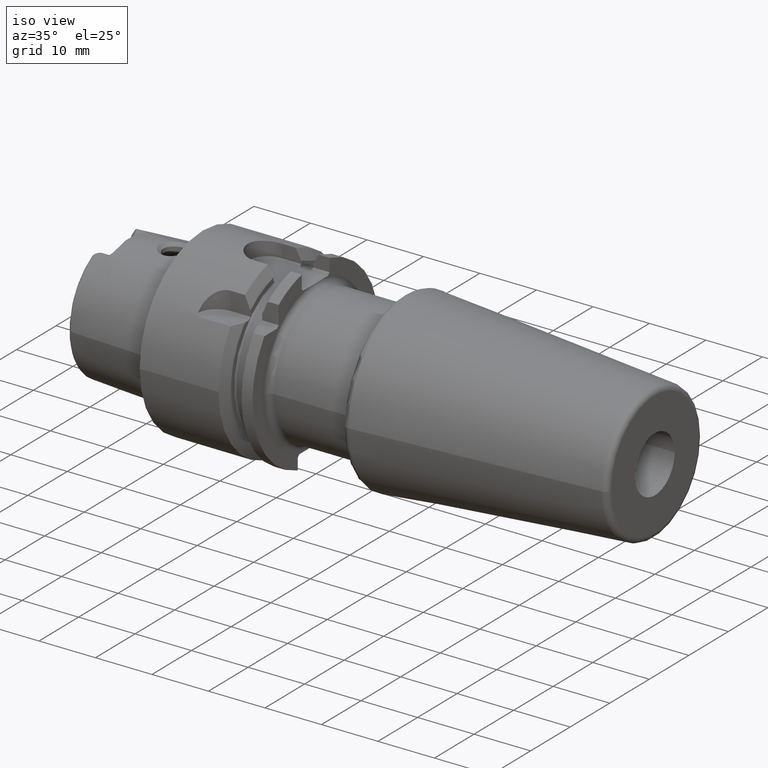
[diagram: clean part render]
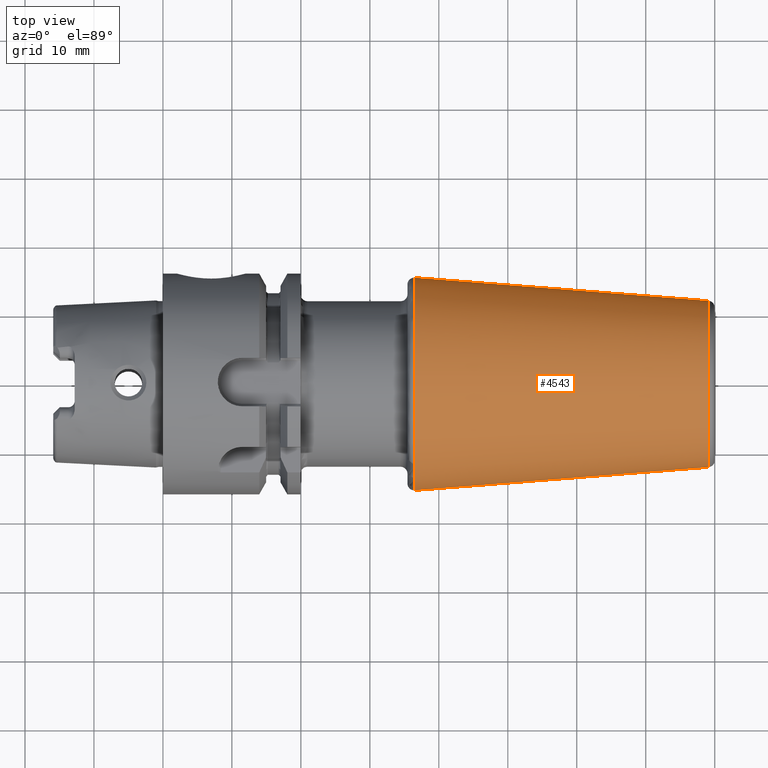
[diagram: tour spotlight — one face highlighted and labeled with its STEP entity id]
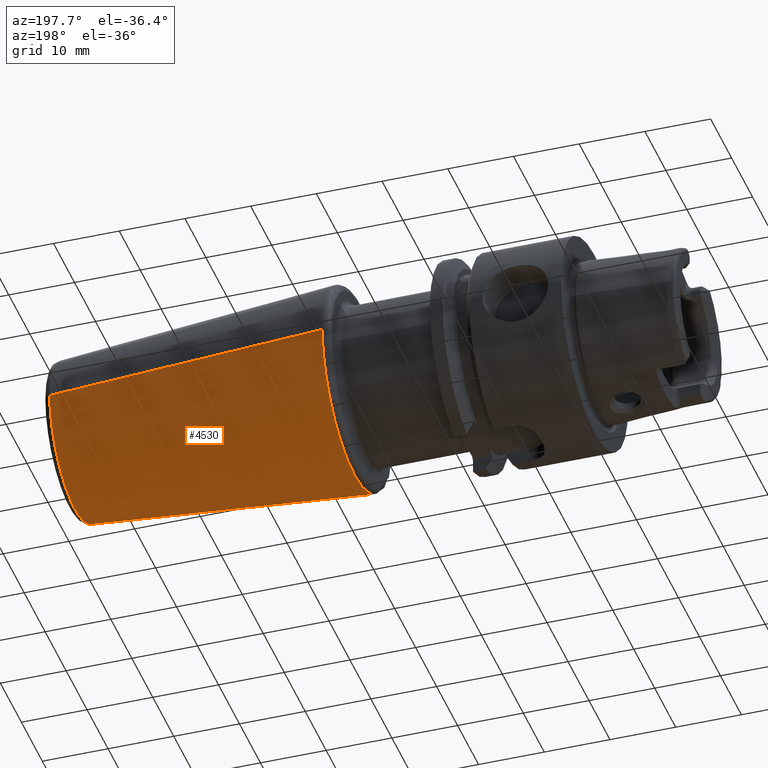
[diagram: tour spotlight — one face highlighted and labeled with its STEP entity id]
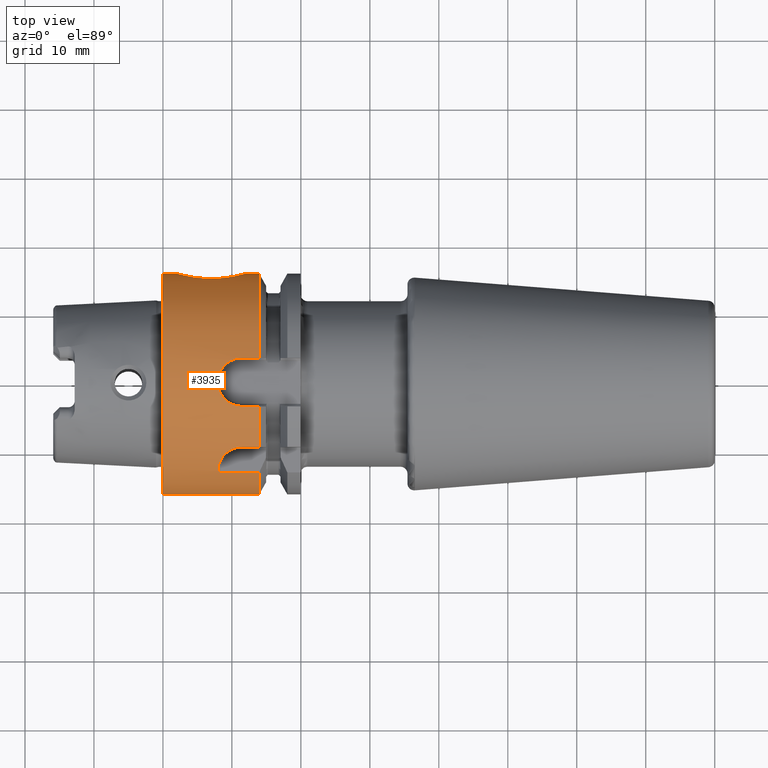
[diagram: tour spotlight — one face highlighted and labeled with its STEP entity id]
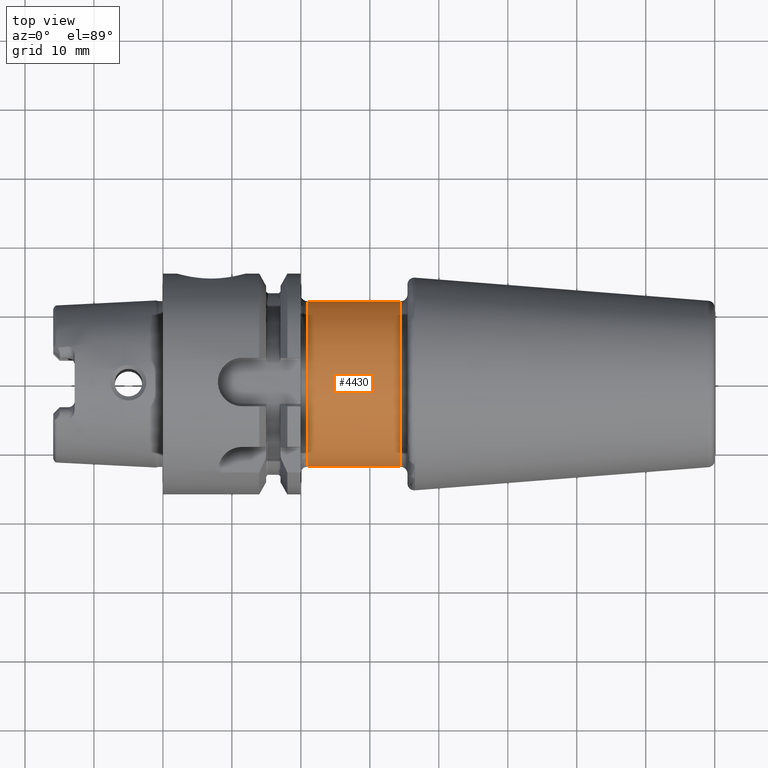
[diagram: tour spotlight — one face highlighted and labeled with its STEP entity id]
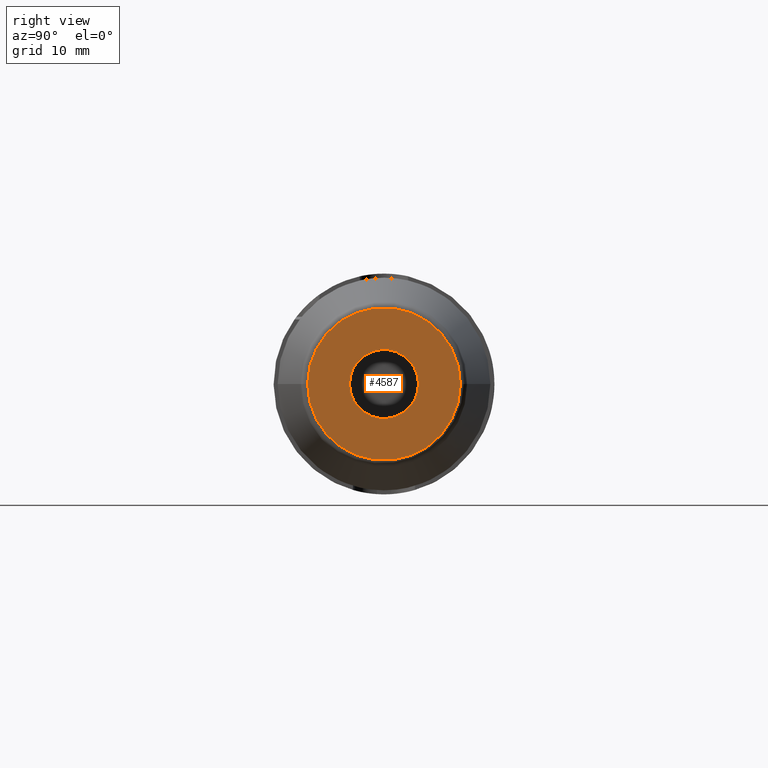
[diagram: tour spotlight — one face highlighted and labeled with its STEP entity id]
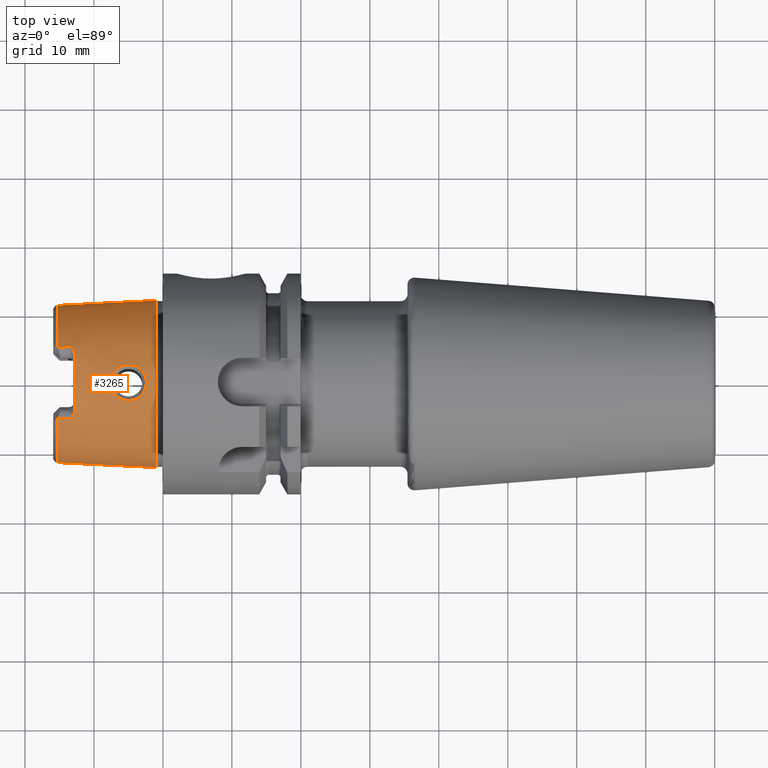
[diagram: tour spotlight — one face highlighted and labeled with its STEP entity id]
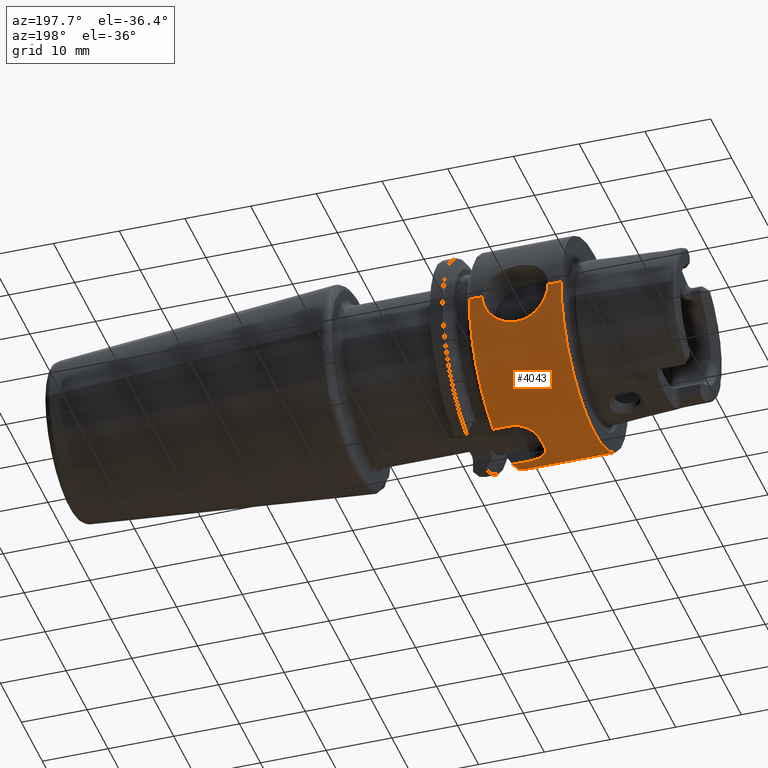
[diagram: tour spotlight — one face highlighted and labeled with its STEP entity id]
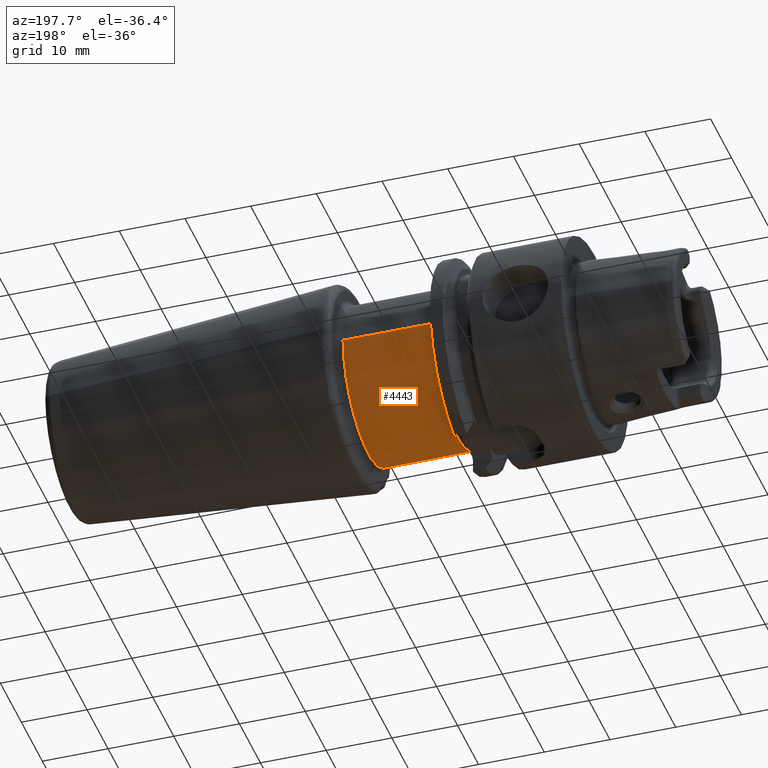
[diagram: tour spotlight — one face highlighted and labeled with its STEP entity id]
A machine part: a face-by-face anatomy tour. The part has 188 B-rep faces; the first image is the clean iso view, then the 8 largest visible faces are spotlighted one at a time (largest first), each with its STEP entity span.

Face 1 — top view, entity #4543. In plain terms, the highlighted conical surface has half-angle 4.5 deg.
Definition (entity closure, byte-faithful):
#1307=DIRECTION('',(-9.969173337331E-1,7.845909572785E-2,7.009415385202E-14));
#1308=VECTOR('',#1307,4.268157304544E1);
#1309=CARTESIAN_POINT('',(7.907845909573E1,1.207252684207E1,
-6.798136072397E-13));
#1310=LINE('',#1309,#1308);
#1316=DIRECTION('',(-9.969173337331E-1,-7.845909572785E-2,-7.015334956435E-14));
#1317=VECTOR('',#1316,4.268157304544E1);
#1318=CARTESIAN_POINT('',(7.907845909573E1,-1.207252684207E1,
6.821258751997E-13));
#1319=LINE('',#1318,#1317);
#1325=CARTESIAN_POINT('',(7.907845909573E1,0.E0,0.E0));
#1326=DIRECTION('',(-1.E0,0.E0,0.E0));
#1327=DIRECTION('',(0.E0,-1.E0,0.E0));
#1328=AXIS2_PLACEMENT_3D('',#1325,#1326,#1327);
#1330=CARTESIAN_POINT('',(3.652845909573E1,0.E0,0.E0));
#1331=DIRECTION('',(-1.E0,0.E0,0.E0));
#1332=DIRECTION('',(0.E0,-1.E0,0.E0));
#1333=AXIS2_PLACEMENT_3D('',#1330,#1331,#1332);
#3190=CARTESIAN_POINT('',(7.907845909573E1,1.207252684207E1,0.E0));
#3191=CARTESIAN_POINT('',(7.907845909573E1,-1.207252684207E1,0.E0));
#3192=VERTEX_POINT('',#3190);
#3193=VERTEX_POINT('',#3191);
#3216=CARTESIAN_POINT('',(3.652845909573E1,1.542128446746E1,
2.311915140454E-12));
#3217=VERTEX_POINT('',#3216);
#3218=CARTESIAN_POINT('',(3.652845909573E1,-1.542128446746E1,
-2.312129438614E-12));
#3219=VERTEX_POINT('',#3218);
#4531=CARTESIAN_POINT('',(5.780345909573E1,0.E0,0.E0));
#4532=DIRECTION('',(-1.E0,0.E0,0.E0));
#4533=DIRECTION('',(0.E0,1.E0,0.E0));
#4534=AXIS2_PLACEMENT_3D('',#4531,#4532,#4533);
#4535=CONICAL_SURFACE('',#4534,1.374690565477E1,4.5E0);
#4536=ORIENTED_EDGE('',*,*,#4521,.F.);
#4538=ORIENTED_EDGE('',*,*,#4537,.F.);
#4539=ORIENTED_EDGE('',*,*,#4524,.T.);
#4540=ORIENTED_EDGE('',*,*,#4496,.T.);
#4541=EDGE_LOOP('',(#4536,#4538,#4539,#4540));
#4542=FACE_OUTER_BOUND('',#4541,.F.);
#4543=ADVANCED_FACE('',(#4542),#4535,.T.);
#1329=CIRCLE('',#1328,1.207252684207E1);
#1334=CIRCLE('',#1333,1.542128446746E1);
#4496=EDGE_CURVE('',#3219,#3217,#1334,.T.);
#4521=EDGE_CURVE('',#3192,#3217,#1310,.T.);
#4524=EDGE_CURVE('',#3193,#3219,#1319,.T.);
#4537=EDGE_CURVE('',#3193,#3192,#1329,.T.);

Face 2 — auxiliary view, entity #4530. In plain terms, the highlighted conical surface has half-angle 4.5 deg.
Definition (entity closure, byte-faithful):
#1307=DIRECTION('',(-9.969173337331E-1,7.845909572785E-2,7.009415385202E-14));
#1308=VECTOR('',#1307,4.268157304544E1);
#1309=CARTESIAN_POINT('',(7.907845909573E1,1.207252684207E1,
-6.798136072397E-13));
#1310=LINE('',#1309,#1308);
#1311=CARTESIAN_POINT('',(3.652845909573E1,0.E0,0.E0));
#1312=DIRECTION('',(-1.E0,0.E0,0.E0));
#1313=DIRECTION('',(0.E0,1.E0,0.E0));
#1314=AXIS2_PLACEMENT_3D('',#1311,#1312,#1313);
#1316=DIRECTION('',(-9.969173337331E-1,-7.845909572785E-2,-7.015334956435E-14));
#1317=VECTOR('',#1316,4.268157304544E1);
#1318=CARTESIAN_POINT('',(7.907845909573E1,-1.207252684207E1,
6.821258751997E-13));
#1319=LINE('',#1318,#1317);
#1320=CARTESIAN_POINT('',(7.907845909573E1,0.E0,0.E0));
#1321=DIRECTION('',(-1.E0,0.E0,0.E0));
#1322=DIRECTION('',(0.E0,1.E0,0.E0));
#1323=AXIS2_PLACEMENT_3D('',#1320,#1321,#1322);
#3190=CARTESIAN_POINT('',(7.907845909573E1,1.207252684207E1,0.E0));
#3191=CARTESIAN_POINT('',(7.907845909573E1,-1.207252684207E1,0.E0));
#3192=VERTEX_POINT('',#3190);
#3193=VERTEX_POINT('',#3191);
#3216=CARTESIAN_POINT('',(3.652845909573E1,1.542128446746E1,
2.311915140454E-12));
#3217=VERTEX_POINT('',#3216);
#3218=CARTESIAN_POINT('',(3.652845909573E1,-1.542128446746E1,
-2.312129438614E-12));
#3219=VERTEX_POINT('',#3218);
#4516=CARTESIAN_POINT('',(5.780345909573E1,0.E0,0.E0));
#4517=DIRECTION('',(-1.E0,0.E0,0.E0));
#4518=DIRECTION('',(0.E0,1.E0,0.E0));
#4519=AXIS2_PLACEMENT_3D('',#4516,#4517,#4518);
#4520=CONICAL_SURFACE('',#4519,1.374690565477E1,4.5E0);
#4522=ORIENTED_EDGE('',*,*,#4521,.T.);
#4523=ORIENTED_EDGE('',*,*,#4510,.T.);
#4525=ORIENTED_EDGE('',*,*,#4524,.F.);
#4527=ORIENTED_EDGE('',*,*,#4526,.F.);
#4528=EDGE_LOOP('',(#4522,#4523,#4525,#4527));
#4529=FACE_OUTER_BOUND('',#4528,.F.);
#4530=ADVANCED_FACE('',(#4529),#4520,.T.);
#1315=CIRCLE('',#1314,1.542128446746E1);
#1324=CIRCLE('',#1323,1.207252684207E1);
#4510=EDGE_CURVE('',#3217,#3219,#1315,.T.);
#4521=EDGE_CURVE('',#3192,#3217,#1310,.T.);
#4524=EDGE_CURVE('',#3193,#3219,#1319,.T.);
#4526=EDGE_CURVE('',#3192,#3193,#1324,.T.);

Face 3 — top view, entity #3935. In plain terms, the highlighted cylindrical surface (partial cylindrical patch) has radius 16 mm, axis along (1, 0, 0).
Definition (entity closure, byte-faithful):
#652=CARTESIAN_POINT('',(0.E0,0.E0,0.E0));
#653=DIRECTION('',(1.E0,0.E0,0.E0));
#654=DIRECTION('',(0.E0,1.E0,0.E0));
#655=AXIS2_PLACEMENT_3D('',#652,#653,#654);
#672=CARTESIAN_POINT('',(1.2E1,1.6E1,1.008602021616E-14));
#673=CARTESIAN_POINT('',(1.2E1,1.6E1,1.384831210731E-1));
#674=CARTESIAN_POINT('',(1.198857472883E1,1.599642383929E1,4.152201587552E-1));
#675=CARTESIAN_POINT('',(1.193617925837E1,1.598012685317E1,8.325514525903E-1));
#676=CARTESIAN_POINT('',(1.184918862596E1,1.595341424613E1,1.242244236119E0));
#677=CARTESIAN_POINT('',(1.173005148059E1,1.591753791280E1,1.637751727769E0));
#678=CARTESIAN_POINT('',(1.158076576168E1,1.587371987355E1,2.018395523805E0));
#679=CARTESIAN_POINT('',(1.139184063221E1,1.582006425608E1,2.403716168340E0));
#680=CARTESIAN_POINT('',(1.114947778328E1,1.575421076374E1,2.804049621060E0));
#681=CARTESIAN_POINT('',(1.083383536282E1,1.567346501870E1,3.226138953249E0));
#682=CARTESIAN_POINT('',(1.041998168295E1,1.557655309088E1,3.665864750429E0));
#683=CARTESIAN_POINT('',(9.900055378106E0,1.546936725606E1,4.093942619542E0));
#684=CARTESIAN_POINT('',(9.255795997863E0,1.536009398866E1,4.484674152869E0));
#685=CARTESIAN_POINT('',(8.524207561993E0,1.526852878969E1,4.784634512282E0));
#686=CARTESIAN_POINT('',(7.742547190435E0,1.521033340607E1,4.964859089440E0));
#687=CARTESIAN_POINT('',(7.246583726505E0,1.519868415357E1,5.E0));
#688=CARTESIAN_POINT('',(7.E0,1.519868415357E1,5.E0));
#690=CARTESIAN_POINT('',(1.396484030111E1,0.E0,0.E0));
#691=DIRECTION('',(1.E0,0.E0,0.E0));
#692=DIRECTION('',(0.E0,1.E0,0.E0));
#693=AXIS2_PLACEMENT_3D('',#690,#691,#692);
#695=DIRECTION('',(1.E0,0.E0,0.E0));
#696=VECTOR('',#695,2.500340301107E0);
#697=CARTESIAN_POINT('',(1.14645E1,3.5145E0,1.560923732121E1));
#698=LINE('',#697,#696);
#699=CARTESIAN_POINT('',(1.14645E1,-3.5145E0,1.560923732121E1));
#700=CARTESIAN_POINT('',(1.124580290028E1,-3.5145E0,1.560923732121E1));
#701=CARTESIAN_POINT('',(1.081663522347E1,-3.474643976128E0,1.561829769930E1));
#702=CARTESIAN_POINT('',(1.018456168032E1,-3.294803153140E0,1.565767703599E1));
#703=CARTESIAN_POINT('',(9.603164027011E0,-3.004745330961E0,1.571662282257E1));
#704=CARTESIAN_POINT('',(9.080980274596E0,-2.609833699146E0,1.578778166669E1));
#705=CARTESIAN_POINT('',(8.644808146623E0,-2.131294979080E0,1.586032285614E1));
#706=CARTESIAN_POINT('',(8.299183665744E0,-1.572988995087E0,1.592609844267E1));
#707=CARTESIAN_POINT('',(8.064070595974E0,-9.658282963753E-1,1.597504049413E1));
#708=CARTESIAN_POINT('',(7.944083359891E0,-3.152991215932E-1,1.600128824226E1));
#709=CARTESIAN_POINT('',(7.945291483030E0,3.278725829061E-1,1.600101939083E1));
#710=CARTESIAN_POINT('',(8.067207125482E0,9.762967524750E-1,1.597436794712E1));
#711=CARTESIAN_POINT('',(8.303100444425E0,1.580511182422E0,1.592531794369E1));
#712=CARTESIAN_POINT('',(8.648600216331E0,2.136041143432E0,1.585965440796E1));
#713=CARTESIAN_POINT('',(9.083612459901E0,2.612033277685E0,1.578739779918E1));
#714=CARTESIAN_POINT('',(9.604309948942E0,3.005302741830E0,1.571650700245E1));
#715=CARTESIAN_POINT('',(1.018393377645E1,3.294455384659E0,1.565774842815E1));
#716=CARTESIAN_POINT('',(1.081518657658E1,3.474385240502E0,1.561835648547E1));
#717=CARTESIAN_POINT('',(1.124513674610E1,3.5145E0,1.560923732121E1));
#718=CARTESIAN_POINT('',(1.14645E1,3.5145E0,1.560923732121E1));
#720=DIRECTION('',(1.E0,0.E0,0.E0));
#721=VECTOR('',#720,2.500340301107E0);
#722=CARTESIAN_POINT('',(1.14645E1,-3.5145E0,1.560923732121E1));
#723=LINE('',#722,#721);
#724=CARTESIAN_POINT('',(1.396484030111E1,0.E0,0.E0));
#725=DIRECTION('',(1.E0,0.E0,0.E0));
#726=DIRECTION('',(0.E0,-2.1965625E-1,9.755773325759E-1));
#727=AXIS2_PLACEMENT_3D('',#724,#725,#726);
#729=DIRECTION('',(1.E0,0.E0,0.E0));
#730=VECTOR('',#729,2.514925306096E0);
#731=CARTESIAN_POINT('',(1.144991499501E1,-9.35E0,1.298373983103E1));
#732=LINE('',#731,#730);
#733=CARTESIAN_POINT('',(7.953757123085E0,-1.268611465035E1,9.750003881231E0));
#734=CARTESIAN_POINT('',(7.961866156194E0,-1.251312407491E1,9.975088786509E0));
#735=CARTESIAN_POINT('',(8.003649176460E0,-1.217334939288E1,1.039239953071E1));
#736=CARTESIAN_POINT('',(8.133796547442E0,-1.169582882618E1,1.092509647137E1));
#737=CARTESIAN_POINT('',(8.322618300446E0,-1.125477118312E1,1.137746944480E1));
#738=CARTESIAN_POINT('',(8.561962394751E0,-1.085544943176E1,1.175773830246E1));
#739=CARTESIAN_POINT('',(8.833674145437E0,-1.051247229319E1,1.206418838671E1));
#740=CARTESIAN_POINT('',(9.120122020134E0,-1.022853669123E1,1.230503380001E1));
#741=CARTESIAN_POINT('',(9.413980452850E0,-9.995324465790E0,1.249470360759E1));
#742=CARTESIAN_POINT('',(9.714685523432E0,-9.803733277269E0,1.264526277539E1));
#743=CARTESIAN_POINT('',(1.002524639444E1,-9.646706485841E0,1.276524859090E1));
#744=CARTESIAN_POINT('',(1.035718363610E1,-9.518388395315E0,1.286105825090E1));
#745=CARTESIAN_POINT('',(1.071211119394E1,-9.421916587158E0,1.293176319200E1));
#746=CARTESIAN_POINT('',(1.108026950838E1,-9.362988015399E0,1.297440184194E1));
#747=CARTESIAN_POINT('',(1.132615966221E1,-9.35E0,1.298373983103E1));
#748=CARTESIAN_POINT('',(1.144991499501E1,-9.35E0,1.298373983103E1));
#750=DIRECTION('',(9.999999999998E-1,-2.380866196616E-8,-5.518655600636E-7));
#751=VECTOR('',#750,5.612035974328E0);
#752=CARTESIAN_POINT('',(8.352804326779E0,-1.298373969742E1,9.350003097089E0));
#753=LINE('',#752,#751);
#754=CARTESIAN_POINT('',(1.396484030111E1,0.E0,0.E0));
#755=DIRECTION('',(1.E0,0.E0,0.E0));
#756=DIRECTION('',(0.E0,-8.114837394397E-1,5.84375E-1));
#757=AXIS2_PLACEMENT_3D('',#754,#755,#756);
#759=CARTESIAN_POINT('',(7.E0,1.519868415357E1,5.E0));
#760=CARTESIAN_POINT('',(6.754803113564E0,1.519868415357E1,5.E0));
#761=CARTESIAN_POINT('',(6.262290798436E0,1.521021567416E1,4.965209096844E0));
#762=CARTESIAN_POINT('',(5.489039168972E0,1.526735902769E1,4.788278121417E0));
#763=CARTESIAN_POINT('',(4.765528100126E0,1.535706954690E1,4.494810080379E0));
#764=CARTESIAN_POINT('',(4.125534491610E0,1.546460743672E1,4.111642736040E0));
#765=CARTESIAN_POINT('',(3.605047387187E0,1.557105115636E1,3.689007838870E0));
#766=CARTESIAN_POINT('',(3.187797927560E0,1.566815712346E1,3.251771384690E0));
#767=CARTESIAN_POINT('',(2.868052912720E0,1.574958007858E1,2.829969347888E0));
#768=CARTESIAN_POINT('',(2.621808614951E0,1.581626443516E1,2.428689107909E0));
#769=CARTESIAN_POINT('',(2.429138705619E0,1.587085272626E1,2.041009853197E0));
#770=CARTESIAN_POINT('',(2.276451908883E0,1.591559832173E1,1.656829082878E0));
#771=CARTESIAN_POINT('',(2.154389053973E0,1.595232216531E1,1.256706290314E0));
#772=CARTESIAN_POINT('',(2.065339692383E0,1.597965564277E1,8.423354446150E-1));
#773=CARTESIAN_POINT('',(2.011698369721E0,1.599633820545E1,4.201446886954E-1));
#774=CARTESIAN_POINT('',(2.E0,1.6E1,1.401336895626E-1));
#775=CARTESIAN_POINT('',(2.E0,1.6E1,0.E0));
#867=DIRECTION('',(-1.E0,0.E0,0.E0));
#868=VECTOR('',#867,2.E0);
#869=CARTESIAN_POINT('',(2.E0,1.6E1,0.E0));
#870=LINE('',#869,#868);
#871=DIRECTION('',(-1.E0,0.E0,0.E0));
#872=VECTOR('',#871,1.396484030111E1);
#873=CARTESIAN_POINT('',(1.396484030111E1,-1.6E1,0.E0));
#874=LINE('',#873,#872);
#928=DIRECTION('',(-1.E0,0.E0,0.E0));
#929=VECTOR('',#928,1.964840301107E0);
#930=CARTESIAN_POINT('',(1.396484030111E1,1.6E1,0.E0));
#931=LINE('',#930,#929);
#951=CARTESIAN_POINT('',(1.396484030111E1,-3.5145E0,1.560923732121E1));
#1548=CARTESIAN_POINT('',(1.396484030111E1,3.5145E0,1.560923732121E1));
#1714=CARTESIAN_POINT('',(1.396484030111E1,-1.298373983103E1,9.35E0));
#1740=CARTESIAN_POINT('',(8.352804326779E0,-1.298373969742E1,9.350003097089E0));
#1741=CARTESIAN_POINT('',(8.283970831226E0,-1.293570861382E1,9.416700754122E0));
#1742=CARTESIAN_POINT('',(8.148715362801E0,-1.283804114483E1,9.550149811661E0));
#1743=CARTESIAN_POINT('',(8.018000646523E0,-1.273727679283E1,9.683434786558E0));
#1744=CARTESIAN_POINT('',(7.953757123085E0,-1.268611465035E1,9.750003881231E0));
#1763=CARTESIAN_POINT('',(1.396484030111E1,-9.35E0,1.298373983103E1));
#2893=VERTEX_POINT('',#951);
#2903=VERTEX_POINT('',#1548);
#2973=VERTEX_POINT('',#1714);
#2979=VERTEX_POINT('',#1763);
#2996=CARTESIAN_POINT('',(1.14645E1,3.5145E0,1.560923732121E1));
#2997=VERTEX_POINT('',#2996);
#2998=CARTESIAN_POINT('',(1.14645E1,-3.5145E0,1.560923732121E1));
#2999=VERTEX_POINT('',#2998);
#3040=CARTESIAN_POINT('',(7.953753979137E0,-1.268611543367E1,9.750020980409E0));
#3042=VERTEX_POINT('',#3040);
#3044=CARTESIAN_POINT('',(8.352819797790E0,-1.298373902935E1,9.35E0));
#3046=VERTEX_POINT('',#3044);
#3048=CARTESIAN_POINT('',(1.144991499501E1,-9.35E0,1.298373983103E1));
#3049=VERTEX_POINT('',#3048);
#3070=CARTESIAN_POINT('',(0.E0,1.6E1,0.E0));
#3071=CARTESIAN_POINT('',(0.E0,-1.6E1,0.E0));
#3072=VERTEX_POINT('',#3070);
#3073=VERTEX_POINT('',#3071);
#3074=CARTESIAN_POINT('',(1.396484030111E1,1.6E1,0.E0));
#3075=VERTEX_POINT('',#3074);
#3076=CARTESIAN_POINT('',(1.396484030111E1,-1.6E1,0.E0));
#3077=VERTEX_POINT('',#3076);
#3170=VERTEX_POINT('',#672);
#3171=VERTEX_POINT('',#688);
#3172=VERTEX_POINT('',#775);
#3897=CARTESIAN_POINT('',(-1.76925E1,0.E0,0.E0));
#3898=DIRECTION('',(1.E0,0.E0,0.E0));
#3899=DIRECTION('',(0.E0,-1.E0,0.E0));
#3900=AXIS2_PLACEMENT_3D('',#3897,#3898,#3899);
#3901=CYLINDRICAL_SURFACE('',#3900,1.6E1);
#3903=ORIENTED_EDGE('',*,*,#3902,.F.);
#3905=ORIENTED_EDGE('',*,*,#3904,.F.);
#3907=ORIENTED_EDGE('',*,*,#3906,.T.);
#3909=ORIENTED_EDGE('',*,*,#3908,.F.);
#3911=ORIENTED_EDGE('',*,*,#3910,.F.);
#3913=ORIENTED_EDGE('',*,*,#3912,.T.);
#3915=ORIENTED_EDGE('',*,*,#3914,.T.);
#3917=ORIENTED_EDGE('',*,*,#3916,.F.);
#3919=ORIENTED_EDGE('',*,*,#3918,.F.);
#3921=ORIENTED_EDGE('',*,*,#3920,.F.);
#3923=ORIENTED_EDGE('',*,*,#3922,.T.);
#3925=ORIENTED_EDGE('',*,*,#3924,.T.);
#3927=ORIENTED_EDGE('',*,*,#3926,.T.);
#3928=ORIENTED_EDGE('',*,*,#3886,.F.);
#3930=ORIENTED_EDGE('',*,*,#3929,.F.);
#3932=ORIENTED_EDGE('',*,*,#3931,.F.);
#3933=EDGE_LOOP('',(#3903,#3905,#3907,#3909,#3911,#3913,#3915,#3917,#3919,#3921,
#3923,#3925,#3927,#3928,#3930,#3932));
#3934=FACE_OUTER_BOUND('',#3933,.F.);
#3935=ADVANCED_FACE('',(#3934),#3901,.T.);
#656=CIRCLE('',#655,1.6E1);
#689=B_SPLINE_CURVE_WITH_KNOTS('',3,(#672,#673,#674,#675,#676,#677,#678,#679,
#680,#681,#682,#683,#684,#685,#686,#687,#688),.UNSPECIFIED.,.F.,.F.,(4,1,1,1,1,
1,1,1,1,1,1,1,1,1,4),(0.E0,7.142857142857E-2,1.428571428571E-1,
2.142857142857E-1,2.857142857143E-1,3.571428571429E-1,4.285714285714E-1,5.E-1,
5.714285714286E-1,6.428571428571E-1,7.142857142857E-1,7.857142857143E-1,
8.571428571429E-1,9.285714285714E-1,1.E0),.UNSPECIFIED.);
#694=CIRCLE('',#693,1.6E1);
#719=B_SPLINE_CURVE_WITH_KNOTS('',3,(#699,#700,#701,#702,#703,#704,#705,#706,
#707,#708,#709,#710,#711,#712,#713,#714,#715,#716,#717,#718),.UNSPECIFIED.,.F.,
.F.,(4,1,1,1,1,1,1,1,1,1,1,1,1,1,1,1,1,4),(0.E0,5.882352941176E-2,
1.176470588235E-1,1.764705882353E-1,2.352941176471E-1,2.941176470588E-1,
3.529411764706E-1,4.117647058824E-1,4.705882352941E-1,5.294117647059E-1,
5.882352941176E-1,6.470588235294E-1,7.058823529412E-1,7.647058823529E-1,
8.235294117647E-1,8.823529411765E-1,9.411764705882E-1,1.E0),.UNSPECIFIED.);
#728=CIRCLE('',#727,1.6E1);
#749=B_SPLINE_CURVE_WITH_KNOTS('',3,(#733,#734,#735,#736,#737,#738,#739,#740,
#741,#742,#743,#744,#745,#746,#747,#748),.UNSPECIFIED.,.F.,.F.,(4,1,1,1,1,1,1,1,
1,1,1,1,1,4),(0.E0,7.692307692308E-2,1.538461538462E-1,2.307692307692E-1,
3.076923076923E-1,3.846153846154E-1,4.615384615385E-1,5.384615384615E-1,
6.153846153846E-1,6.923076923077E-1,7.692307692308E-1,8.461538461538E-1,
9.230769230769E-1,1.E0),.UNSPECIFIED.);
#758=CIRCLE('',#757,1.6E1);
#776=B_SPLINE_CURVE_WITH_KNOTS('',3,(#759,#760,#761,#762,#763,#764,#765,#766,
#767,#768,#769,#770,#771,#772,#773,#774,#775),.UNSPECIFIED.,.F.,.F.,(4,1,1,1,1,
1,1,1,1,1,1,1,1,1,4),(0.E0,7.142857142857E-2,1.428571428571E-1,
2.142857142857E-1,2.857142857143E-1,3.571428571429E-1,4.285714285714E-1,5.E-1,
5.714285714286E-1,6.428571428571E-1,7.142857142857E-1,7.857142857143E-1,
8.571428571429E-1,9.285714285714E-1,1.E0),.UNSPECIFIED.);
#1745=B_SPLINE_CURVE_WITH_KNOTS('',3,(#1740,#1741,#1742,#1743,#1744),
.UNSPECIFIED.,.F.,.F.,(4,1,4),(0.E0,5.E-1,1.E0),.UNSPECIFIED.);
#3886=EDGE_CURVE('',#3072,#3073,#656,.T.);
#3902=EDGE_CURVE('',#3170,#3171,#689,.T.);
#3904=EDGE_CURVE('',#3075,#3170,#931,.T.);
#3906=EDGE_CURVE('',#3075,#2903,#694,.T.);
#3908=EDGE_CURVE('',#2997,#2903,#698,.T.);
#3910=EDGE_CURVE('',#2999,#2997,#719,.T.);
#3912=EDGE_CURVE('',#2999,#2893,#723,.T.);
#3914=EDGE_CURVE('',#2893,#2979,#728,.T.);
#3916=EDGE_CURVE('',#3049,#2979,#732,.T.);
#3918=EDGE_CURVE('',#3042,#3049,#749,.T.);
#3920=EDGE_CURVE('',#3046,#3042,#1745,.T.);
#3922=EDGE_CURVE('',#3046,#2973,#753,.T.);
#3924=EDGE_CURVE('',#2973,#3077,#758,.T.);
#3926=EDGE_CURVE('',#3077,#3073,#874,.T.);
#3929=EDGE_CURVE('',#3172,#3072,#870,.T.);
#3931=EDGE_CURVE('',#3171,#3172,#776,.T.);

Face 4 — top view, entity #4430. In plain terms, the highlighted cylindrical surface (partial cylindrical patch) has radius 12 mm, axis along (1, 0, 0).
Definition (entity closure, byte-faithful):
#1239=CARTESIAN_POINT('',(2.095E1,0.E0,0.E0));
#1240=DIRECTION('',(1.E0,0.E0,0.E0));
#1241=DIRECTION('',(0.E0,-8.955364410646E-7,9.999999999996E-1));
#1242=AXIS2_PLACEMENT_3D('',#1239,#1240,#1241);
#1244=CARTESIAN_POINT('',(2.095E1,0.E0,0.E0));
#1245=DIRECTION('',(1.E0,0.E0,0.E0));
#1246=DIRECTION('',(0.E0,1.E0,0.E0));
#1247=AXIS2_PLACEMENT_3D('',#1244,#1245,#1246);
#1249=CARTESIAN_POINT('',(3.445E1,0.E0,0.E0));
#1250=DIRECTION('',(1.E0,0.E0,0.E0));
#1251=DIRECTION('',(0.E0,1.E0,0.E0));
#1252=AXIS2_PLACEMENT_3D('',#1249,#1250,#1251);
#1254=DIRECTION('',(-1.E0,0.E0,-2.902182095466E-13));
#1255=VECTOR('',#1254,1.35E1);
#1256=CARTESIAN_POINT('',(3.445E1,-1.2E1,1.483893481465E-13));
#1257=LINE('',#1256,#1255);
#1263=DIRECTION('',(-1.E0,0.E0,1.972145687707E-13));
#1264=VECTOR('',#1263,1.35E1);
#1265=CARTESIAN_POINT('',(3.445E1,1.2E1,-1.487740894210E-13));
#1266=LINE('',#1265,#1264);
#3187=CARTESIAN_POINT('',(2.095E1,-1.545676868465E-5,1.199999999999E1));
#3189=VERTEX_POINT('',#3187);
#3200=CARTESIAN_POINT('',(2.095E1,-1.2E1,0.E0));
#3201=VERTEX_POINT('',#3200);
#3204=CARTESIAN_POINT('',(2.095E1,1.2E1,0.E0));
#3205=VERTEX_POINT('',#3204);
#3208=CARTESIAN_POINT('',(3.445E1,1.2E1,-1.487740894210E-13));
#3209=VERTEX_POINT('',#3208);
#3210=CARTESIAN_POINT('',(3.445E1,-1.2E1,1.483893481465E-13));
#3211=VERTEX_POINT('',#3210);
#4415=CARTESIAN_POINT('',(1.69475E1,0.E0,0.E0));
#4416=DIRECTION('',(1.E0,0.E0,0.E0));
#4417=DIRECTION('',(0.E0,-1.E0,0.E0));
#4418=AXIS2_PLACEMENT_3D('',#4415,#4416,#4417);
#4419=CYLINDRICAL_SURFACE('',#4418,1.2E1);
#4420=ORIENTED_EDGE('',*,*,#4406,.F.);
#4421=ORIENTED_EDGE('',*,*,#4390,.F.);
#4423=ORIENTED_EDGE('',*,*,#4422,.F.);
#4425=ORIENTED_EDGE('',*,*,#4424,.T.);
#4427=ORIENTED_EDGE('',*,*,#4426,.T.);
#4428=EDGE_LOOP('',(#4420,#4421,#4423,#4425,#4427));
#4429=FACE_OUTER_BOUND('',#4428,.F.);
#4430=ADVANCED_FACE('',(#4429),#4419,.T.);
#1243=CIRCLE('',#1242,1.2E1);
#1248=CIRCLE('',#1247,1.2E1);
#1253=CIRCLE('',#1252,1.2E1);
#4390=EDGE_CURVE('',#3205,#3189,#1248,.T.);
#4406=EDGE_CURVE('',#3189,#3201,#1243,.T.);
#4422=EDGE_CURVE('',#3209,#3205,#1266,.T.);
#4424=EDGE_CURVE('',#3209,#3211,#1253,.T.);
#4426=EDGE_CURVE('',#3211,#3201,#1257,.T.);

Face 5 — right view, entity #4587. In plain terms, the highlighted planar face has unit normal (1, 0, 0).
Definition (entity closure, byte-faithful):
#1345=CARTESIAN_POINT('',(8.E1,0.E0,0.E0));
#1346=DIRECTION('',(1.E0,0.E0,0.E0));
#1347=DIRECTION('',(0.E0,1.E0,0.E0));
#1348=AXIS2_PLACEMENT_3D('',#1345,#1346,#1347);
#1350=CARTESIAN_POINT('',(8.E1,0.E0,0.E0));
#1351=DIRECTION('',(1.E0,0.E0,0.E0));
#1352=DIRECTION('',(0.E0,-1.E0,0.E0));
#1353=AXIS2_PLACEMENT_3D('',#1350,#1351,#1352);
#1355=CARTESIAN_POINT('',(8.E1,0.E0,0.E0));
#1356=DIRECTION('',(-1.E0,0.E0,0.E0));
#1357=DIRECTION('',(0.E0,1.E0,0.E0));
#1358=AXIS2_PLACEMENT_3D('',#1355,#1356,#1357);
#1360=CARTESIAN_POINT('',(8.E1,0.E0,0.E0));
#1361=DIRECTION('',(-1.E0,0.E0,0.E0));
#1362=DIRECTION('',(0.E0,-1.E0,0.E0));
#1363=AXIS2_PLACEMENT_3D('',#1360,#1361,#1362);
#3178=CARTESIAN_POINT('',(8.E1,5.E0,0.E0));
#3179=CARTESIAN_POINT('',(8.E1,-5.E0,0.E0));
#3180=VERTEX_POINT('',#3178);
#3181=VERTEX_POINT('',#3179);
#3194=CARTESIAN_POINT('',(8.E1,1.107560950834E1,0.E0));
#3195=CARTESIAN_POINT('',(8.E1,-1.107560950834E1,0.E0));
#3196=VERTEX_POINT('',#3194);
#3197=VERTEX_POINT('',#3195);
#4572=CARTESIAN_POINT('',(8.E1,0.E0,0.E0));
#4573=DIRECTION('',(1.E0,0.E0,0.E0));
#4574=DIRECTION('',(0.E0,-1.E0,0.E0));
#4575=AXIS2_PLACEMENT_3D('',#4572,#4573,#4574);
#4576=PLANE('',#4575);
#4577=ORIENTED_EDGE('',*,*,#4566,.T.);
#4578=ORIENTED_EDGE('',*,*,#4552,.T.);
#4579=EDGE_LOOP('',(#4577,#4578));
#4580=FACE_OUTER_BOUND('',#4579,.F.);
#4582=ORIENTED_EDGE('',*,*,#4581,.T.);
#4584=ORIENTED_EDGE('',*,*,#4583,.T.);
#4585=EDGE_LOOP('',(#4582,#4584));
#4586=FACE_BOUND('',#4585,.F.);
#4587=ADVANCED_FACE('',(#4580,#4586),#4576,.T.);
#1349=CIRCLE('',#1348,5.E0);
#1354=CIRCLE('',#1353,5.E0);
#1359=CIRCLE('',#1358,1.107560950834E1);
#1364=CIRCLE('',#1363,1.107560950834E1);
#4552=EDGE_CURVE('',#3197,#3196,#1364,.T.);
#4566=EDGE_CURVE('',#3196,#3197,#1359,.T.);
#4581=EDGE_CURVE('',#3180,#3181,#1349,.T.);
#4583=EDGE_CURVE('',#3181,#3180,#1354,.T.);

Face 6 — top view, entity #3265. In plain terms, the highlighted conical surface has half-angle 2.868 deg.
Definition (entity closure, byte-faithful):
#2=CARTESIAN_POINT('',(-1.528050084758E1,-5.087212792253E0,1.02E1));
#3=CARTESIAN_POINT('',(-1.529699668159E1,-5.103454397372E0,1.019097598162E1));
#4=CARTESIAN_POINT('',(-1.531350440698E1,-5.119664096789E0,1.018191654313E1));
#5=CARTESIAN_POINT('',(-1.533002398309E1,-5.135841999599E0,1.017282180564E1));
#7=CARTESIAN_POINT('',(-1.528050084758E1,-5.087212792253E0,1.02E1));
#8=CARTESIAN_POINT('',(-1.501961192983E1,-5.116499783887E0,1.02E1));
#9=CARTESIAN_POINT('',(-1.449530554743E1,-5.174952612235E0,1.02E1));
#10=CARTESIAN_POINT('',(-1.396594406954E1,-5.233180710525E0,1.02E1));
#11=CARTESIAN_POINT('',(-1.37E1,-5.262242692701E0,1.02E1));
#13=CARTESIAN_POINT('',(-1.28E1,0.E0,0.E0));
#14=DIRECTION('',(1.E0,0.E0,0.E0));
#15=DIRECTION('',(0.E0,3.360277168818E-1,9.418520974586E-1));
#16=AXIS2_PLACEMENT_3D('',#13,#14,#15);
#18=CARTESIAN_POINT('',(-1.37E1,5.262242692701E0,1.02E1));
#19=CARTESIAN_POINT('',(-1.396593847897E1,5.233181321454E0,1.02E1));
#20=CARTESIAN_POINT('',(-1.449529436802E1,5.174953850050E0,1.02E1));
#21=CARTESIAN_POINT('',(-1.501960634108E1,5.116500411272E0,1.02E1));
#22=CARTESIAN_POINT('',(-1.528050084758E1,5.087212792253E0,1.02E1));
#24=CARTESIAN_POINT('',(-1.533002398309E1,5.135841999599E0,1.017282180564E1));
#25=CARTESIAN_POINT('',(-1.531350440698E1,5.119664096789E0,1.018191654313E1));
#26=CARTESIAN_POINT('',(-1.529699668159E1,5.103454397372E0,1.019097598162E1));
#27=CARTESIAN_POINT('',(-1.528050084758E1,5.087212792253E0,1.02E1));
#29=CARTESIAN_POINT('',(-1.E0,0.E0,0.E0));
#30=DIRECTION('',(1.E0,0.E0,0.E0));
#31=DIRECTION('',(0.E0,1.E0,0.E0));
#32=AXIS2_PLACEMENT_3D('',#29,#30,#31);
#34=CARTESIAN_POINT('',(-7.599306672667E0,-1.411617669899E-8,1.178302425766E1));
#35=CARTESIAN_POINT('',(-7.599429040280E0,1.615065310074E-1,1.178301812671E1));
#36=CARTESIAN_POINT('',(-7.569932547228E0,4.836208762442E-1,1.177810179011E1));
#37=CARTESIAN_POINT('',(-7.425573254024E0,9.801151560265E-1,1.175434843109E1));
#38=CARTESIAN_POINT('',(-7.181097770959E0,1.441086726907E0,1.171839428203E1));
#39=CARTESIAN_POINT('',(-6.854771338531E0,1.837564710911E0,1.167854199352E1));
#40=CARTESIAN_POINT('',(-6.459784689965E0,2.160502651025E0,1.164253920858E1));
#41=CARTESIAN_POINT('',(-6.004866011278E0,2.402482676082E0,1.161767895280E1));
#42=CARTESIAN_POINT('',(-5.511300881455E0,2.551392139218E0,1.161078504790E1));
#43=CARTESIAN_POINT('',(-4.996900503974E0,2.602676424844E0,1.162567410604E1));
#44=CARTESIAN_POINT('',(-4.481431208776E0,2.553468223312E0,1.166318227990E1));
#45=CARTESIAN_POINT('',(-3.985689065975E0,2.405064809131E0,1.172049630480E1));
#46=CARTESIAN_POINT('',(-3.528872243801E0,2.160953697677E0,1.179184777212E1));
#47=CARTESIAN_POINT('',(-3.134853702446E0,1.835715404022E0,1.186752387445E1));
#48=CARTESIAN_POINT('',(-2.810902512497E0,1.436296850306E0,1.193955883251E1));
#49=CARTESIAN_POINT('',(-2.570963844244E0,9.761359786221E-1,1.199865280979E1));
#50=CARTESIAN_POINT('',(-2.429471157917E0,4.818881300922E-1,1.203583655271E1));
#51=CARTESIAN_POINT('',(-2.400673533332E0,1.607607063064E-1,1.204349719124E1));
#52=CARTESIAN_POINT('',(-2.400700487410E0,9.833676003339E-9,1.204349584077E1));
#54=CARTESIAN_POINT('',(-2.400700487410E0,9.833676003339E-9,1.204349584077E1));
#55=CARTESIAN_POINT('',(-2.400601260891E0,-1.606015752470E-1,1.204350081229E1));
#56=CARTESIAN_POINT('',(-2.429455076092E0,-4.815121168201E-1,1.203584593639E1));
#57=CARTESIAN_POINT('',(-2.570641951886E0,-9.753985246161E-1,1.199873110377E1));
#58=CARTESIAN_POINT('',(-2.810759995094E0,-1.436190942752E0,1.193958652849E1));
#59=CARTESIAN_POINT('',(-3.135126907712E0,-1.836007188056E0,1.186746986917E1));
#60=CARTESIAN_POINT('',(-3.529887068932E0,-2.161719147282E0,1.179165578996E1));
#61=CARTESIAN_POINT('',(-3.986510987593E0,-2.405343080436E0,1.172039427970E1));
#62=CARTESIAN_POINT('',(-4.482265370634E0,-2.553654166699E0,1.166309893701E1));
#63=CARTESIAN_POINT('',(-4.997760545781E0,-2.602667807057E0,1.162563179684E1));
#64=CARTESIAN_POINT('',(-5.512003301626E0,-2.551224583416E0,1.161078576509E1));
#65=CARTESIAN_POINT('',(-6.005367934796E0,-2.402306576660E0,1.161769106733E1));
#66=CARTESIAN_POINT('',(-6.460342475822E0,-2.160070843938E0,1.164259067397E1));
#67=CARTESIAN_POINT('',(-6.854859865711E0,-1.837455386464E0,1.167855133125E1));
#68=CARTESIAN_POINT('',(-7.180800135073E0,-1.441432349914E0,1.171835612770E1));
#69=CARTESIAN_POINT('',(-7.425019709035E0,-9.813498940615E-1,1.175426909959E1));
#70=CARTESIAN_POINT('',(-7.569861366751E0,-4.844226824610E-1,1.177808234233E1));
#71=CARTESIAN_POINT('',(-7.599345526843E0,-1.618422591455E-1,1.178302231096E1));
#72=CARTESIAN_POINT('',(-7.599306672667E0,-1.411617669899E-8,1.178302425766E1));
#246=CARTESIAN_POINT('',(-1.312403888997E1,4.905E0,1.040843019171E1));
#247=CARTESIAN_POINT('',(-1.305105687643E1,4.784598688803E0,1.046921191039E1));
#248=CARTESIAN_POINT('',(-1.292931540317E1,4.547244349059E0,1.058263299612E1));
#249=CARTESIAN_POINT('',(-1.282190186017E1,4.196487872790E0,1.073207909365E1));
#250=CARTESIAN_POINT('',(-1.28E1,3.977945738738E0,1.081466368408E1));
#251=CARTESIAN_POINT('',(-1.28E1,3.871883970889E0,1.085250369505E1));
#301=CARTESIAN_POINT('',(-1.533002398309E1,0.E0,0.E0));
#302=DIRECTION('',(1.E0,0.E0,0.E0));
#303=DIRECTION('',(0.E0,1.E0,0.E0));
#304=AXIS2_PLACEMENT_3D('',#301,#302,#303);
#320=CARTESIAN_POINT('',(-1.533002398309E1,5.135841999599E0,1.017282180564E1));
#348=CARTESIAN_POINT('',(-1.533002398309E1,-5.135841999599E0,1.017282180564E1));
#364=CARTESIAN_POINT('',(-1.533002398309E1,0.E0,0.E0));
#365=DIRECTION('',(1.E0,0.E0,0.E0));
#366=DIRECTION('',(0.E0,-4.506803714873E-1,8.926853884522E-1));
#367=AXIS2_PLACEMENT_3D('',#364,#365,#366);
#491=DIRECTION('',(-9.987472158766E-1,5.003997180916E-2,0.E0));
#492=VECTOR('',#491,1.434799892834E1);
#493=CARTESIAN_POINT('',(-1.E0,-1.211372602740E1,0.E0));
#494=LINE('',#493,#492);
#500=DIRECTION('',(-9.987472158766E-1,-5.003997180916E-2,0.E0));
#501=VECTOR('',#500,1.434799892834E1);
#502=CARTESIAN_POINT('',(-1.E0,1.211372602740E1,0.E0));
#503=LINE('',#502,#501);
#2583=CARTESIAN_POINT('',(-1.28E1,-3.871883970889E0,1.085250369505E1));
#2584=CARTESIAN_POINT('',(-1.28E1,-3.977940400624E0,1.081466558858E1));
#2585=CARTESIAN_POINT('',(-1.282189741352E1,-4.196476121513E0,
1.073208429787E1));
#2586=CARTESIAN_POINT('',(-1.292932748315E1,-4.547276572579E0,
1.058261873409E1));
#2587=CARTESIAN_POINT('',(-1.305106445582E1,-4.784611192824E0,
1.046920559803E1));
#2588=CARTESIAN_POINT('',(-1.312403888997E1,-4.905E0,1.040843019171E1));
#2655=CARTESIAN_POINT('',(-1.312403888997E1,-4.905E0,1.040843019171E1));
#2656=CARTESIAN_POINT('',(-1.315455836656E1,-4.955349186333E0,
1.038301261072E1));
#2657=CARTESIAN_POINT('',(-1.321966471256E1,-5.046252970241E0,
1.033565720505E1));
#2658=CARTESIAN_POINT('',(-1.332887808565E1,-5.152626445571E0,
1.027679066058E1));
#2659=CARTESIAN_POINT('',(-1.345074784472E1,-5.227483165980E0,
1.023195209180E1));
#2660=CARTESIAN_POINT('',(-1.357623240679E1,-5.264962475965E0,
1.020558016859E1));
#2661=CARTESIAN_POINT('',(-1.365903689452E1,-5.266719081453E0,1.02E1));
#2662=CARTESIAN_POINT('',(-1.37E1,-5.262242692701E0,1.02E1));
#2688=CARTESIAN_POINT('',(-1.37E1,5.262242692701E0,1.02E1));
#2689=CARTESIAN_POINT('',(-1.365873313697E1,5.266752275637E0,1.02E1));
#2690=CARTESIAN_POINT('',(-1.357548952150E1,5.265177757957E0,1.020551393378E1));
#2691=CARTESIAN_POINT('',(-1.344653269108E1,5.225502574004E0,1.023320020323E1));
#2692=CARTESIAN_POINT('',(-1.332851715643E1,5.152123548836E0,1.027706231071E1));
#2693=CARTESIAN_POINT('',(-1.321818615484E1,5.044623358848E0,1.033653725612E1));
#2694=CARTESIAN_POINT('',(-1.315414218140E1,4.954662589233E0,1.038335922282E1));
#2695=CARTESIAN_POINT('',(-1.312403888997E1,4.905E0,1.040843019171E1));
#2713=CARTESIAN_POINT('',(-1.E0,1.211372602740E1,0.E0));
#2714=CARTESIAN_POINT('',(-1.E0,-1.211372602740E1,0.E0));
#2715=VERTEX_POINT('',#2713);
#2716=VERTEX_POINT('',#2714);
#2717=CARTESIAN_POINT('',(-1.533002398309E1,1.139575256550E1,0.E0));
#2718=VERTEX_POINT('',#2717);
#2719=CARTESIAN_POINT('',(-1.533002398309E1,-1.139575256550E1,0.E0));
#2720=VERTEX_POINT('',#2719);
#2741=CARTESIAN_POINT('',(-1.28E1,3.871883970889E0,1.085250369505E1));
#2742=VERTEX_POINT('',#2741);
#2745=CARTESIAN_POINT('',(-1.37E1,5.262242692701E0,1.02E1));
#2746=VERTEX_POINT('',#2745);
#2747=CARTESIAN_POINT('',(-1.28E1,-3.871883970889E0,1.085250369505E1));
#2748=VERTEX_POINT('',#2747);
#2751=CARTESIAN_POINT('',(-1.37E1,-5.262242692701E0,1.02E1));
#2752=VERTEX_POINT('',#2751);
#2753=VERTEX_POINT('',#2695);
#2754=VERTEX_POINT('',#2655);
#2816=VERTEX_POINT('',#320);
#2834=VERTEX_POINT('',#348);
#2876=CARTESIAN_POINT('',(-1.528050084758E1,5.087212792253E0,1.02E1));
#2877=VERTEX_POINT('',#2876);
#2878=CARTESIAN_POINT('',(-1.528050084758E1,-5.087212792253E0,1.02E1));
#2879=VERTEX_POINT('',#2878);
#3054=VERTEX_POINT('',#34);
#3055=VERTEX_POINT('',#52);
#3224=CARTESIAN_POINT('',(-8.165011991543E0,0.E0,0.E0));
#3225=DIRECTION('',(1.E0,0.E0,0.E0));
#3226=DIRECTION('',(0.E0,-1.E0,0.E0));
#3227=AXIS2_PLACEMENT_3D('',#3224,#3225,#3226);
#3228=CONICAL_SURFACE('',#3227,1.175473929645E1,2.868277069010E0);
#3230=ORIENTED_EDGE('',*,*,#3229,.F.);
#3232=ORIENTED_EDGE('',*,*,#3231,.T.);
#3234=ORIENTED_EDGE('',*,*,#3233,.F.);
#3236=ORIENTED_EDGE('',*,*,#3235,.F.);
#3238=ORIENTED_EDGE('',*,*,#3237,.F.);
#3240=ORIENTED_EDGE('',*,*,#3239,.F.);
#3242=ORIENTED_EDGE('',*,*,#3241,.F.);
#3244=ORIENTED_EDGE('',*,*,#3243,.T.);
#3246=ORIENTED_EDGE('',*,*,#3245,.F.);
#3248=ORIENTED_EDGE('',*,*,#3247,.F.);
#3250=ORIENTED_EDGE('',*,*,#3249,.F.);
#3252=ORIENTED_EDGE('',*,*,#3251,.T.);
#3254=ORIENTED_EDGE('',*,*,#3253,.T.);
#3256=ORIENTED_EDGE('',*,*,#3255,.F.);
#3257=EDGE_LOOP('',(#3230,#3232,#3234,#3236,#3238,#3240,#3242,#3244,#3246,#3248,
#3250,#3252,#3254,#3256));
#3258=FACE_OUTER_BOUND('',#3257,.F.);
#3260=ORIENTED_EDGE('',*,*,#3259,.F.);
#3262=ORIENTED_EDGE('',*,*,#3261,.F.);
#3263=EDGE_LOOP('',(#3260,#3262));
#3264=FACE_BOUND('',#3263,.F.);
#3265=ADVANCED_FACE('',(#3258,#3264),#3228,.T.);
#6=B_SPLINE_CURVE_WITH_KNOTS('',3,(#2,#3,#4,#5),.UNSPECIFIED.,.F.,.F.,(4,4),(
0.E0,1.E0),.UNSPECIFIED.);
#12=B_SPLINE_CURVE_WITH_KNOTS('',3,(#7,#8,#9,#10,#11),.UNSPECIFIED.,.F.,.F.,(4,
1,4),(0.E0,5.E-1,1.E0),.UNSPECIFIED.);
#17=CIRCLE('',#16,1.152251369863E1);
#23=B_SPLINE_CURVE_WITH_KNOTS('',3,(#18,#19,#20,#21,#22),.UNSPECIFIED.,.F.,.F.,(
4,1,4),(0.E0,5.E-1,1.E0),.UNSPECIFIED.);
#28=B_SPLINE_CURVE_WITH_KNOTS('',3,(#24,#25,#26,#27),.UNSPECIFIED.,.F.,.F.,(4,
4),(0.E0,1.E0),.UNSPECIFIED.);
#33=CIRCLE('',#32,1.211372602740E1);
#53=B_SPLINE_CURVE_WITH_KNOTS('',3,(#34,#35,#36,#37,#38,#39,#40,#41,#42,#43,#44,
#45,#46,#47,#48,#49,#50,#51,#52),.UNSPECIFIED.,.F.,.F.,(4,1,1,1,1,1,1,1,1,1,1,1,
1,1,1,1,4),(0.E0,6.25E-2,1.25E-1,1.875E-1,2.5E-1,3.125E-1,3.75E-1,4.375E-1,
5.E-1,5.625E-1,6.25E-1,6.875E-1,7.5E-1,8.125E-1,8.75E-1,9.375E-1,1.E0),
.UNSPECIFIED.);
#73=B_SPLINE_CURVE_WITH_KNOTS('',3,(#54,#55,#56,#57,#58,#59,#60,#61,#62,#63,#64,
#65,#66,#67,#68,#69,#70,#71,#72),.UNSPECIFIED.,.F.,.F.,(4,1,1,1,1,1,1,1,1,1,1,1,
1,1,1,1,4),(0.E0,6.25E-2,1.25E-1,1.875E-1,2.5E-1,3.125E-1,3.75E-1,4.375E-1,
5.E-1,5.625E-1,6.25E-1,6.875E-1,7.5E-1,8.125E-1,8.75E-1,9.375E-1,1.E0),
.UNSPECIFIED.);
#252=B_SPLINE_CURVE_WITH_KNOTS('',3,(#246,#247,#248,#249,#250,#251),
.UNSPECIFIED.,.F.,.F.,(4,1,1,4),(0.E0,3.333333333333E-1,6.666666666667E-1,1.E0),
.UNSPECIFIED.);
#305=CIRCLE('',#304,1.139575256550E1);
#368=CIRCLE('',#367,1.139575256550E1);
#2589=B_SPLINE_CURVE_WITH_KNOTS('',3,(#2583,#2584,#2585,#2586,#2587,#2588),
.UNSPECIFIED.,.F.,.F.,(4,1,1,4),(0.E0,3.333333333333E-1,6.666666666667E-1,1.E0),
.UNSPECIFIED.);
#2663=B_SPLINE_CURVE_WITH_KNOTS('',3,(#2655,#2656,#2657,#2658,#2659,#2660,#2661,
#2662),.UNSPECIFIED.,.F.,.F.,(4,1,1,1,1,4),(0.E0,2.E-1,4.E-1,6.E-1,8.E-1,1.E0),
.UNSPECIFIED.);
#2696=B_SPLINE_CURVE_WITH_KNOTS('',3,(#2688,#2689,#2690,#2691,#2692,#2693,#2694,
#2695),.UNSPECIFIED.,.F.,.F.,(4,1,1,1,1,4),(0.E0,2.E-1,4.E-1,6.E-1,8.E-1,1.E0),
.UNSPECIFIED.);
#3229=EDGE_CURVE('',#2879,#2834,#6,.T.);
#3231=EDGE_CURVE('',#2879,#2752,#12,.T.);
#3233=EDGE_CURVE('',#2754,#2752,#2663,.T.);
#3235=EDGE_CURVE('',#2748,#2754,#2589,.T.);
#3237=EDGE_CURVE('',#2742,#2748,#17,.T.);
#3239=EDGE_CURVE('',#2753,#2742,#252,.T.);
#3241=EDGE_CURVE('',#2746,#2753,#2696,.T.);
#3243=EDGE_CURVE('',#2746,#2877,#23,.T.);
#3245=EDGE_CURVE('',#2816,#2877,#28,.T.);
#3247=EDGE_CURVE('',#2718,#2816,#305,.T.);
#3249=EDGE_CURVE('',#2715,#2718,#503,.T.);
#3251=EDGE_CURVE('',#2715,#2716,#33,.T.);
#3253=EDGE_CURVE('',#2716,#2720,#494,.T.);
#3255=EDGE_CURVE('',#2834,#2720,#368,.T.);
#3259=EDGE_CURVE('',#3054,#3055,#53,.T.);
#3261=EDGE_CURVE('',#3055,#3054,#73,.T.);

Face 7 — auxiliary view, entity #4043. In plain terms, the highlighted cylindrical surface (partial cylindrical patch) has radius 16 mm, axis along (1, 0, 0).
Definition (entity closure, byte-faithful):
#657=CARTESIAN_POINT('',(0.E0,0.E0,0.E0));
#658=DIRECTION('',(-1.E0,0.E0,0.E0));
#659=DIRECTION('',(0.E0,1.E0,0.E0));
#660=AXIS2_PLACEMENT_3D('',#657,#658,#659);
#672=CARTESIAN_POINT('',(1.2E1,1.6E1,1.008602021616E-14));
#775=CARTESIAN_POINT('',(2.E0,1.6E1,0.E0));
#839=CARTESIAN_POINT('',(7.E0,1.519868415357E1,-5.E0));
#840=CARTESIAN_POINT('',(7.265573752108E0,1.519868415357E1,-5.E0));
#841=CARTESIAN_POINT('',(7.787775370214E0,1.521251267140E1,-4.958250951519E0));
#842=CARTESIAN_POINT('',(8.552162180971E0,1.527172049631E1,-4.774439476453E0));
#843=CARTESIAN_POINT('',(9.273893545993E0,1.536269559419E1,-4.475749077499E0));
#844=CARTESIAN_POINT('',(9.943265630933E0,1.547682106835E1,-4.067370527077E0));
#845=CARTESIAN_POINT('',(1.054555286973E1,1.560357056947E1,-3.555049249105E0));
#846=CARTESIAN_POINT('',(1.106248803419E1,1.573010080616E1,-2.950844212215E0));
#847=CARTESIAN_POINT('',(1.147821598612E1,1.584346513917E1,-2.270710839893E0));
#848=CARTESIAN_POINT('',(1.177930888516E1,1.593188386378E1,-1.537904894141E0));
#849=CARTESIAN_POINT('',(1.195987549417E1,1.598739360145E1,-7.751311207503E-1));
#850=CARTESIAN_POINT('',(1.2E1,1.6E1,-2.599700860639E-1));
#851=CARTESIAN_POINT('',(1.2E1,1.6E1,1.008602021616E-14));
#853=CARTESIAN_POINT('',(2.E0,1.6E1,0.E0));
#854=CARTESIAN_POINT('',(2.E0,1.6E1,-2.599291448819E-1));
#855=CARTESIAN_POINT('',(2.040105170769E0,1.598739957788E1,-7.750591203535E-1));
#856=CARTESIAN_POINT('',(2.220741048432E0,1.593186842946E1,-1.538105013814E0));
#857=CARTESIAN_POINT('',(2.521930719684E0,1.584342315306E1,-2.270997861791E0));
#858=CARTESIAN_POINT('',(2.937609181598E0,1.573007755826E1,-2.950942841200E0));
#859=CARTESIAN_POINT('',(3.454189659439E0,1.560363401361E1,-3.554750620759E0));
#860=CARTESIAN_POINT('',(4.056033401020E0,1.547696027088E1,-4.066836530803E0));
#861=CARTESIAN_POINT('',(4.725086333586E0,1.536284855481E1,-4.475228339106E0));
#862=CARTESIAN_POINT('',(5.446901243607E0,1.527181251262E1,-4.774149908220E0));
#863=CARTESIAN_POINT('',(6.211585043176E0,1.521253854427E1,-4.958172918146E0));
#864=CARTESIAN_POINT('',(6.734183056938E0,1.519868415357E1,-5.E0));
#865=CARTESIAN_POINT('',(7.E0,1.519868415357E1,-5.E0));
#867=DIRECTION('',(-1.E0,0.E0,0.E0));
#868=VECTOR('',#867,2.E0);
#869=CARTESIAN_POINT('',(2.E0,1.6E1,0.E0));
#870=LINE('',#869,#868);
#871=DIRECTION('',(-1.E0,0.E0,0.E0));
#872=VECTOR('',#871,1.396484030111E1);
#873=CARTESIAN_POINT('',(1.396484030111E1,-1.6E1,0.E0));
#874=LINE('',#873,#872);
#875=CARTESIAN_POINT('',(1.396484030111E1,0.E0,0.E0));
#876=DIRECTION('',(1.E0,0.E0,0.E0));
#877=DIRECTION('',(0.E0,-1.E0,0.E0));
#878=AXIS2_PLACEMENT_3D('',#875,#876,#877);
#880=DIRECTION('',(1.E0,0.E0,0.E0));
#881=VECTOR('',#880,2.514840301107E0);
#882=CARTESIAN_POINT('',(1.145E1,-4.5145E0,-1.534989543124E1));
#883=LINE('',#882,#881);
#884=CARTESIAN_POINT('',(7.95E0,-1.0145E0,-1.596780478807E1));
#885=CARTESIAN_POINT('',(7.95E0,-1.183052166142E0,-1.595709597901E1));
#886=CARTESIAN_POINT('',(7.974092980258E0,-1.516120703984E0,-1.593060693980E1));
#887=CARTESIAN_POINT('',(8.081281434952E0,-2.007499252738E0,-1.587605075952E1));
#888=CARTESIAN_POINT('',(8.257346373518E0,-2.477382109953E0,-1.580927357571E1));
#889=CARTESIAN_POINT('',(8.496783431328E0,-2.914945049402E0,-1.573416688996E1));
#890=CARTESIAN_POINT('',(8.797041637400E0,-3.315494092662E0,-1.565429607059E1));
#891=CARTESIAN_POINT('',(9.148541821424E0,-3.667037459511E0,-1.557530796119E1));
#892=CARTESIAN_POINT('',(9.548692626697E0,-3.967141577191E0,-1.550121617294E1));
#893=CARTESIAN_POINT('',(9.986135339502E0,-4.206722330631E0,-1.543757807998E1));
#894=CARTESIAN_POINT('',(1.045657265286E1,-4.383126672186E0,-1.538815380690E1));
#895=CARTESIAN_POINT('',(1.094840210053E1,-4.490418189113E0,-1.535700809734E1));
#896=CARTESIAN_POINT('',(1.128143628612E1,-4.5145E0,-1.534989543124E1));
#897=CARTESIAN_POINT('',(1.145E1,-4.5145E0,-1.534989543124E1));
#899=CARTESIAN_POINT('',(7.95E0,0.E0,0.E0));
#900=DIRECTION('',(1.E0,0.E0,0.E0));
#901=DIRECTION('',(0.E0,-6.340625E-2,-9.979877992545E-1));
#902=AXIS2_PLACEMENT_3D('',#899,#900,#901);
#904=CARTESIAN_POINT('',(1.145E1,4.5145E0,-1.534989543124E1));
#905=CARTESIAN_POINT('',(1.128155525724E1,4.5145E0,-1.534989543124E1));
#906=CARTESIAN_POINT('',(1.094864753753E1,4.490465898103E0,-1.535699417955E1));
#907=CARTESIAN_POINT('',(1.045631777658E1,4.383072707401E0,-1.538816956741E1));
#908=CARTESIAN_POINT('',(9.985757699294E0,4.206550857373E0,-1.543762541927E1));
#909=CARTESIAN_POINT('',(9.548444842132E0,3.966958523225E0,-1.550126187477E1));
#910=CARTESIAN_POINT('',(9.148866113494E0,3.667268424781E0,-1.557524952146E1));
#911=CARTESIAN_POINT('',(8.797786385284E0,3.316309320668E0,-1.565411863807E1));
#912=CARTESIAN_POINT('',(8.497639723364E0,2.916249129552E0,-1.573392168619E1));
#913=CARTESIAN_POINT('',(8.257987407753E0,2.478821716195E0,-1.580905025516E1));
#914=CARTESIAN_POINT('',(8.081524017197E0,2.008429633790E0,-1.587593899400E1));
#915=CARTESIAN_POINT('',(7.974136253933E0,1.516571122065E0,-1.593056875927E1));
#916=CARTESIAN_POINT('',(7.95E0,1.183199158104E0,-1.595708664001E1));
#917=CARTESIAN_POINT('',(7.95E0,1.0145E0,-1.596780478807E1));
#919=DIRECTION('',(1.E0,0.E0,0.E0));
#920=VECTOR('',#919,2.514840301107E0);
#921=CARTESIAN_POINT('',(1.145E1,4.5145E0,-1.534989543124E1));
#922=LINE('',#921,#920);
#923=CARTESIAN_POINT('',(1.396484030111E1,0.E0,0.E0));
#924=DIRECTION('',(1.E0,0.E0,0.E0));
#925=DIRECTION('',(0.E0,2.8215625E-1,-9.593684644525E-1));
#926=AXIS2_PLACEMENT_3D('',#923,#924,#925);
#928=DIRECTION('',(-1.E0,0.E0,0.E0));
#929=VECTOR('',#928,1.964840301107E0);
#930=CARTESIAN_POINT('',(1.396484030111E1,1.6E1,0.E0));
#931=LINE('',#930,#929);
#1579=CARTESIAN_POINT('',(1.396484030111E1,4.5145E0,-1.534989543124E1));
#1688=CARTESIAN_POINT('',(1.396484030111E1,-4.5145E0,-1.534989543124E1));
#2913=VERTEX_POINT('',#1579);
#2923=VERTEX_POINT('',#1688);
#3024=CARTESIAN_POINT('',(1.145E1,-4.5145E0,-1.534989543124E1));
#3025=VERTEX_POINT('',#3024);
#3026=CARTESIAN_POINT('',(7.95E0,-1.0145E0,-1.596780478807E1));
#3027=VERTEX_POINT('',#3026);
#3028=CARTESIAN_POINT('',(7.95E0,1.0145E0,-1.596780478807E1));
#3029=VERTEX_POINT('',#3028);
#3030=CARTESIAN_POINT('',(1.145E1,4.5145E0,-1.534989543124E1));
#3031=VERTEX_POINT('',#3030);
#3070=CARTESIAN_POINT('',(0.E0,1.6E1,0.E0));
#3071=CARTESIAN_POINT('',(0.E0,-1.6E1,0.E0));
#3072=VERTEX_POINT('',#3070);
#3073=VERTEX_POINT('',#3071);
#3074=CARTESIAN_POINT('',(1.396484030111E1,1.6E1,0.E0));
#3075=VERTEX_POINT('',#3074);
#3076=CARTESIAN_POINT('',(1.396484030111E1,-1.6E1,0.E0));
#3077=VERTEX_POINT('',#3076);
#3170=VERTEX_POINT('',#672);
#3172=VERTEX_POINT('',#775);
#3173=VERTEX_POINT('',#839);
#4016=CARTESIAN_POINT('',(-1.76925E1,0.E0,0.E0));
#4017=DIRECTION('',(1.E0,0.E0,0.E0));
#4018=DIRECTION('',(0.E0,-1.E0,0.E0));
#4019=AXIS2_PLACEMENT_3D('',#4016,#4017,#4018);
#4020=CYLINDRICAL_SURFACE('',#4019,1.6E1);
#4021=ORIENTED_EDGE('',*,*,#3948,.F.);
#4022=ORIENTED_EDGE('',*,*,#3959,.F.);
#4023=ORIENTED_EDGE('',*,*,#3929,.T.);
#4024=ORIENTED_EDGE('',*,*,#3888,.T.);
#4025=ORIENTED_EDGE('',*,*,#3926,.F.);
#4027=ORIENTED_EDGE('',*,*,#4026,.T.);
#4029=ORIENTED_EDGE('',*,*,#4028,.F.);
#4031=ORIENTED_EDGE('',*,*,#4030,.F.);
#4033=ORIENTED_EDGE('',*,*,#4032,.T.);
#4035=ORIENTED_EDGE('',*,*,#4034,.F.);
#4037=ORIENTED_EDGE('',*,*,#4036,.T.);
#4039=ORIENTED_EDGE('',*,*,#4038,.T.);
#4040=ORIENTED_EDGE('',*,*,#3904,.T.);
#4041=EDGE_LOOP('',(#4021,#4022,#4023,#4024,#4025,#4027,#4029,#4031,#4033,#4035,
#4037,#4039,#4040));
#4042=FACE_OUTER_BOUND('',#4041,.F.);
#4043=ADVANCED_FACE('',(#4042),#4020,.T.);
#661=CIRCLE('',#660,1.6E1);
#852=B_SPLINE_CURVE_WITH_KNOTS('',3,(#839,#840,#841,#842,#843,#844,#845,#846,
#847,#848,#849,#850,#851),.UNSPECIFIED.,.F.,.F.,(4,1,1,1,1,1,1,1,1,1,4),(0.E0,
1.E-1,2.E-1,3.E-1,4.E-1,5.E-1,6.E-1,7.E-1,8.E-1,9.E-1,1.E0),.UNSPECIFIED.);
#866=B_SPLINE_CURVE_WITH_KNOTS('',3,(#853,#854,#855,#856,#857,#858,#859,#860,
#861,#862,#863,#864,#865),.UNSPECIFIED.,.F.,.F.,(4,1,1,1,1,1,1,1,1,1,4),(0.E0,
1.E-1,2.E-1,3.E-1,4.E-1,5.E-1,6.E-1,7.E-1,8.E-1,9.E-1,1.E0),.UNSPECIFIED.);
#879=CIRCLE('',#878,1.6E1);
#898=B_SPLINE_CURVE_WITH_KNOTS('',3,(#884,#885,#886,#887,#888,#889,#890,#891,
#892,#893,#894,#895,#896,#897),.UNSPECIFIED.,.F.,.F.,(4,1,1,1,1,1,1,1,1,1,1,4),(
0.E0,9.090909090909E-2,1.818181818182E-1,2.727272727273E-1,3.636363636364E-1,
4.545454545455E-1,5.454545454545E-1,6.363636363636E-1,7.272727272727E-1,
8.181818181818E-1,9.090909090909E-1,1.E0),.UNSPECIFIED.);
#903=CIRCLE('',#902,1.6E1);
#918=B_SPLINE_CURVE_WITH_KNOTS('',3,(#904,#905,#906,#907,#908,#909,#910,#911,
#912,#913,#914,#915,#916,#917),.UNSPECIFIED.,.F.,.F.,(4,1,1,1,1,1,1,1,1,1,1,4),(
0.E0,9.090909090909E-2,1.818181818182E-1,2.727272727273E-1,3.636363636364E-1,
4.545454545455E-1,5.454545454545E-1,6.363636363636E-1,7.272727272727E-1,
8.181818181818E-1,9.090909090909E-1,1.E0),.UNSPECIFIED.);
#927=CIRCLE('',#926,1.6E1);
#3888=EDGE_CURVE('',#3072,#3073,#661,.T.);
#3904=EDGE_CURVE('',#3075,#3170,#931,.T.);
#3926=EDGE_CURVE('',#3077,#3073,#874,.T.);
#3929=EDGE_CURVE('',#3172,#3072,#870,.T.);
#3948=EDGE_CURVE('',#3173,#3170,#852,.T.);
#3959=EDGE_CURVE('',#3172,#3173,#866,.T.);
#4026=EDGE_CURVE('',#3077,#2923,#879,.T.);
#4028=EDGE_CURVE('',#3025,#2923,#883,.T.);
#4030=EDGE_CURVE('',#3027,#3025,#898,.T.);
#4032=EDGE_CURVE('',#3027,#3029,#903,.T.);
#4034=EDGE_CURVE('',#3031,#3029,#918,.T.);
#4036=EDGE_CURVE('',#3031,#2913,#922,.T.);
#4038=EDGE_CURVE('',#2913,#3075,#927,.T.);

Face 8 — auxiliary view, entity #4443. In plain terms, the highlighted cylindrical surface (partial cylindrical patch) has radius 12 mm, axis along (1, 0, 0).
Definition (entity closure, byte-faithful):
#1210=CARTESIAN_POINT('',(2.095E1,0.E0,0.E0));
#1211=DIRECTION('',(1.E0,0.E0,0.E0));
#1212=DIRECTION('',(0.E0,-1.E0,0.E0));
#1213=AXIS2_PLACEMENT_3D('',#1210,#1211,#1212);
#1254=DIRECTION('',(-1.E0,0.E0,-2.902182095466E-13));
#1255=VECTOR('',#1254,1.35E1);
#1256=CARTESIAN_POINT('',(3.445E1,-1.2E1,1.483893481465E-13));
#1257=LINE('',#1256,#1255);
#1258=CARTESIAN_POINT('',(3.445E1,0.E0,0.E0));
#1259=DIRECTION('',(1.E0,0.E0,0.E0));
#1260=DIRECTION('',(0.E0,-1.E0,0.E0));
#1261=AXIS2_PLACEMENT_3D('',#1258,#1259,#1260);
#1263=DIRECTION('',(-1.E0,0.E0,1.972145687707E-13));
#1264=VECTOR('',#1263,1.35E1);
#1265=CARTESIAN_POINT('',(3.445E1,1.2E1,-1.487740894210E-13));
#1266=LINE('',#1265,#1264);
#3200=CARTESIAN_POINT('',(2.095E1,-1.2E1,0.E0));
#3201=VERTEX_POINT('',#3200);
#3204=CARTESIAN_POINT('',(2.095E1,1.2E1,0.E0));
#3205=VERTEX_POINT('',#3204);
#3208=CARTESIAN_POINT('',(3.445E1,1.2E1,-1.487740894210E-13));
#3209=VERTEX_POINT('',#3208);
#3210=CARTESIAN_POINT('',(3.445E1,-1.2E1,1.483893481465E-13));
#3211=VERTEX_POINT('',#3210);
#4431=CARTESIAN_POINT('',(1.69475E1,0.E0,0.E0));
#4432=DIRECTION('',(1.E0,0.E0,0.E0));
#4433=DIRECTION('',(0.E0,-1.E0,0.E0));
#4434=AXIS2_PLACEMENT_3D('',#4431,#4432,#4433);
#4435=CYLINDRICAL_SURFACE('',#4434,1.2E1);
#4436=ORIENTED_EDGE('',*,*,#4388,.F.);
#4437=ORIENTED_EDGE('',*,*,#4426,.F.);
#4439=ORIENTED_EDGE('',*,*,#4438,.T.);
#4440=ORIENTED_EDGE('',*,*,#4422,.T.);
#4441=EDGE_LOOP('',(#4436,#4437,#4439,#4440));
#4442=FACE_OUTER_BOUND('',#4441,.F.);
#4443=ADVANCED_FACE('',(#4442),#4435,.T.);
#1214=CIRCLE('',#1213,1.2E1);
#1262=CIRCLE('',#1261,1.2E1);
#4388=EDGE_CURVE('',#3201,#3205,#1214,.T.);
#4422=EDGE_CURVE('',#3209,#3205,#1266,.T.);
#4426=EDGE_CURVE('',#3211,#3201,#1257,.T.);
#4438=EDGE_CURVE('',#3211,#3209,#1262,.T.);